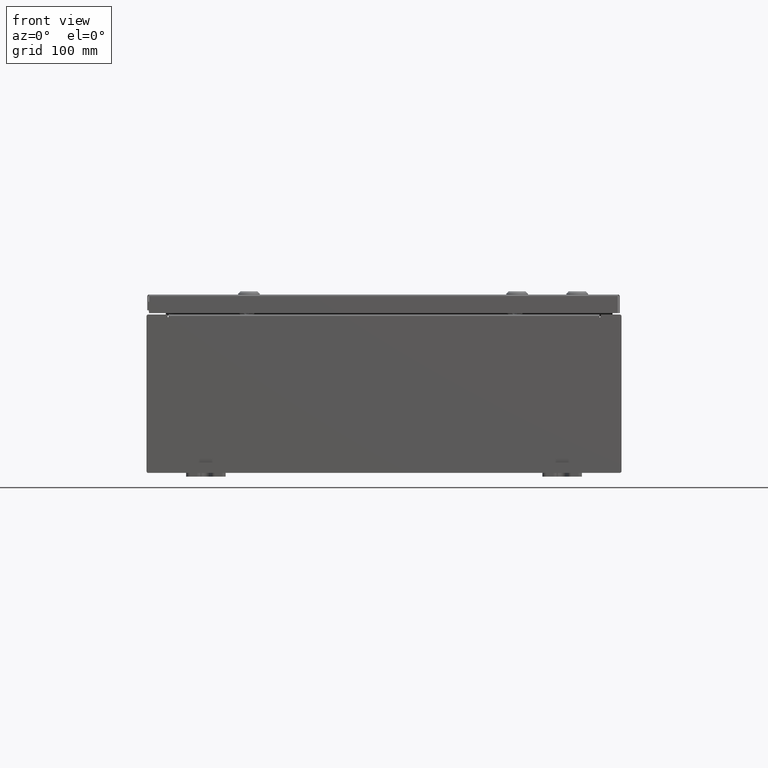
[diagram: clean part render]
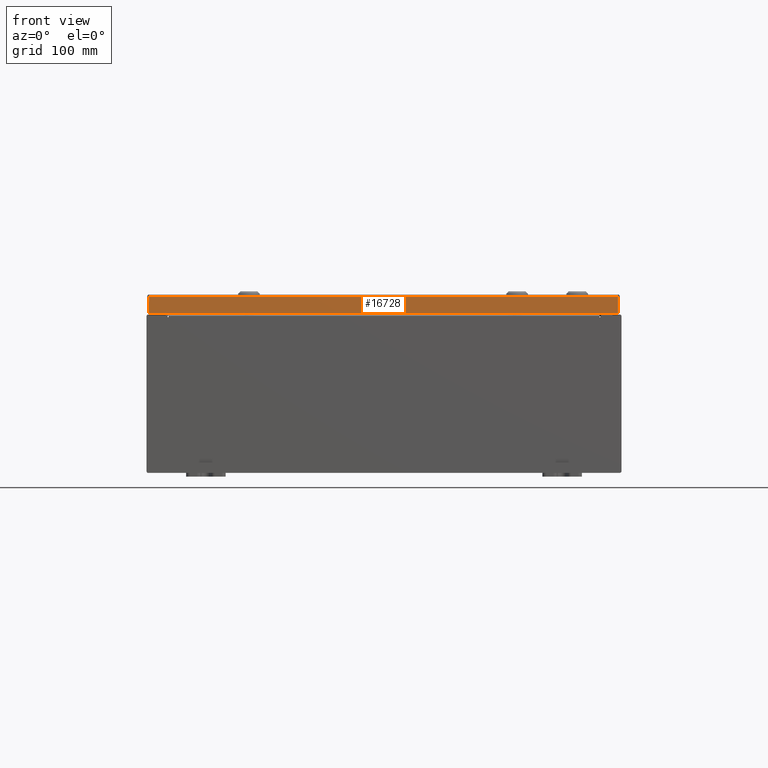
[diagram: same view with one face highlighted and labeled with its STEP entity id]
A machine part, front view. The second image highlights one B-rep face of the part: STEP entity #16728.
In plain terms, the highlighted planar face has unit normal (-0, 1, -0).
Its self-contained STEP definition (entity closure, byte-faithful):
#303 = AXIS2_PLACEMENT_3D ( 'NONE', #32883, #18257, #52574 ) ;
#449 = VECTOR ( 'NONE', #41792, 39.37007874015748100 ) ;
#960 = EDGE_CURVE ( 'NONE', #13896, #47859, #57169, .T. ) ;
#4245 = CARTESIAN_POINT ( 'NONE',  ( 11.93750000000000000, -11.93750000000000200, -0.9376999999999997600 ) ) ;
#5158 = CARTESIAN_POINT ( 'NONE',  ( -11.84865786437626800, -11.93750000000000000, -0.08770000000000008300 ) ) ;
#6588 = LINE ( 'NONE', #14401, #44198 ) ;
#9250 = CARTESIAN_POINT ( 'NONE',  ( 11.84865786437626900, -11.93750000000000200, -0.9376999999999997600 ) ) ;
#13896 = VERTEX_POINT ( 'NONE', #5158 ) ;
#14068 = DIRECTION ( 'NONE',  ( -1.000000000000000000, 4.379057701015054300E-047, 1.258652478756310100E-016 ) ) ;
#14401 = CARTESIAN_POINT ( 'NONE',  ( 11.84865786437626900, -11.93750000000000000, -0.07469999999999980800 ) ) ;
#16486 = VECTOR ( 'NONE', #24634, 39.37007874015748100 ) ;
#16728 = ADVANCED_FACE ( 'NONE', ( #25908 ), #47683, .F. ) ;
#16821 = VERTEX_POINT ( 'NONE', #9250 ) ;
#18257 = DIRECTION ( 'NONE',  ( -3.187436615352006200E-031, 1.000000000000000000, -2.532419924601866100E-015 ) ) ;
#18935 = EDGE_CURVE ( 'NONE', #47859, #16821, #6588, .T. ) ;
#24605 = CARTESIAN_POINT ( 'NONE',  ( -11.84865786437626800, -11.93750000000000200, -0.9376999999999967600 ) ) ;
#24634 = DIRECTION ( 'NONE',  ( 1.000000000000000000, 3.187436615352006600E-031, -7.980458346197363700E-046 ) ) ;
#25908 = FACE_OUTER_BOUND ( 'NONE', #62574, .T. ) ;
#26498 = EDGE_CURVE ( 'NONE', #16821, #55864, #53128, .T. ) ;
#31277 = CARTESIAN_POINT ( 'NONE',  ( 11.93750000000000000, -11.93750000000000000, -0.08770000000000008300 ) ) ;
#32883 = CARTESIAN_POINT ( 'NONE',  ( 3.805002459576457300E-030, -11.93750000000000000, 3.049157650594635900E-014 ) ) ;
#36842 = CARTESIAN_POINT ( 'NONE',  ( -11.84865786437626600, -11.93750000000000000, 3.049157650594635900E-014 ) ) ;
#39893 = ORIENTED_EDGE ( 'NONE', *, *, #18935, .F. ) ;
#40132 = VECTOR ( 'NONE', #14068, 39.37007874015748100 ) ;
#41151 = LINE ( 'NONE', #36842, #449 ) ;
#41792 = DIRECTION ( 'NONE',  ( 0.0000000000000000000, -2.532419924601866100E-015, -1.000000000000000000 ) ) ;
#42589 = CARTESIAN_POINT ( 'NONE',  ( 11.84865786437627100, -11.93750000000000000, -0.08770000000000008300 ) ) ;
#42980 = EDGE_CURVE ( 'NONE', #13896, #55864, #41151, .T. ) ;
#44198 = VECTOR ( 'NONE', #58587, 39.37007874015748100 ) ;
#46032 = ORIENTED_EDGE ( 'NONE', *, *, #42980, .T. ) ;
#46992 = ORIENTED_EDGE ( 'NONE', *, *, #26498, .F. ) ;
#47683 = PLANE ( 'NONE',  #303 ) ;
#47859 = VERTEX_POINT ( 'NONE', #42589 ) ;
#52574 = DIRECTION ( 'NONE',  ( 0.0000000000000000000, 2.532419924601866100E-015, 1.000000000000000000 ) ) ;
#53128 = LINE ( 'NONE', #4245, #40132 ) ;
#55864 = VERTEX_POINT ( 'NONE', #24605 ) ;
#57169 = LINE ( 'NONE', #31277, #16486 ) ;
#58587 = DIRECTION ( 'NONE',  ( -0.0000000000000000000, -2.532419924601866100E-015, -1.000000000000000000 ) ) ;
#58903 = ORIENTED_EDGE ( 'NONE', *, *, #960, .F. ) ;
#62574 = EDGE_LOOP ( 'NONE', ( #58903, #46032, #46992, #39893 ) ) ;